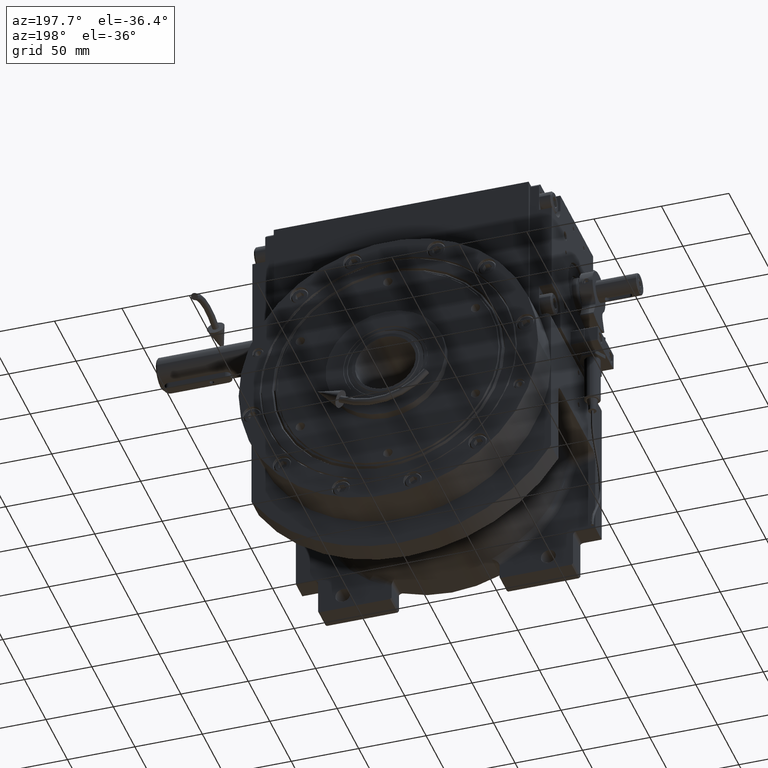
[diagram: clean part render]
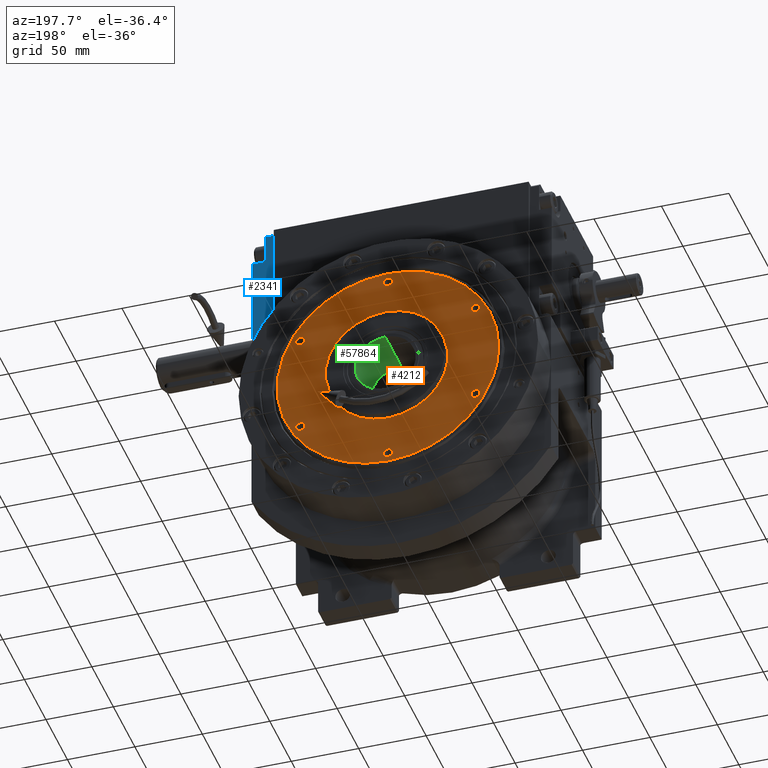
[diagram: same view with three faces highlighted in distinct colors, each labeled with its STEP entity id]
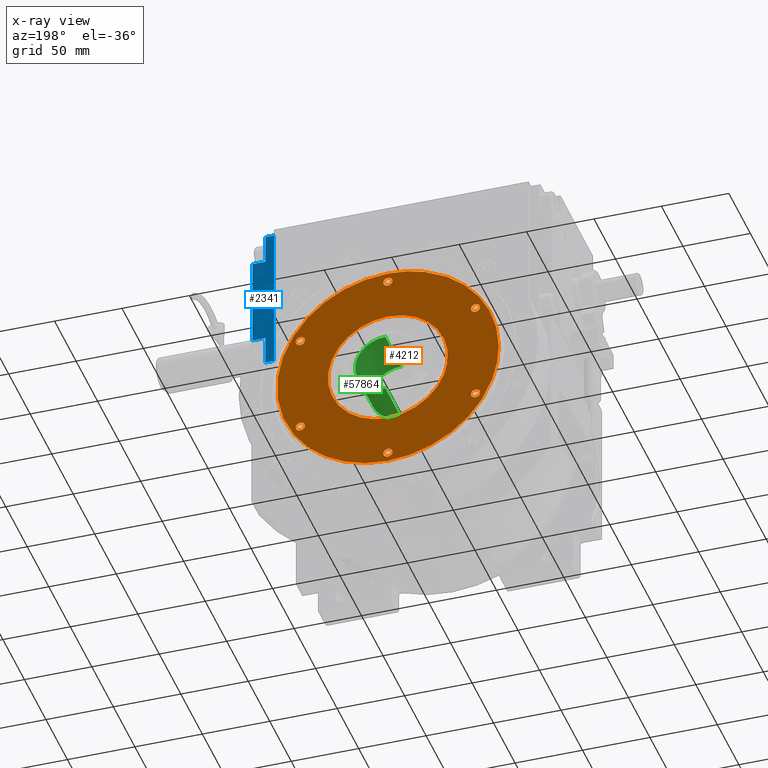
[diagram: x-ray of the same camera — body ghosted, the three highlighted faces saturated]
A machine part, auxiliary view with three faces highlighted in distinct colors.
The next image is the same camera in x-ray (body ghosted, the three faces saturated) — at least one of them is partly hidden behind the body in this view.
Their STEP definitions:

[orange] entity #4212 — the highlighted planar face has unit normal (-0, -1, 0).
#306 = CARTESIAN_POINT ( 'NONE',  ( 65.33763228115985555, 110.5000000000000568, -50.14630245138513942 ) ) ;
#677 = CARTESIAN_POINT ( 'NONE',  ( 80.11857142980534263, 110.4999999999999716, -18.33865731567751567 ) ) ;
#759 = CARTESIAN_POINT ( 'NONE',  ( -80.67297687466574985, 110.5000000000000284, 15.69867770626870396 ) ) ;
#1058 = ORIENTED_EDGE ( 'NONE', *, *, #10526, .T. ) ;
#1128 = CARTESIAN_POINT ( 'NONE',  ( 71.21633143618710449, 110.4999999999998863, 41.11144999242253562 ) ) ;
#1157 = VERTEX_POINT ( 'NONE', #2758 ) ;
#1423 = CARTESIAN_POINT ( 'NONE',  ( 61.93063791654589068, 110.5000000000000568, -54.29769947772616945 ) ) ;
#1491 = CARTESIAN_POINT ( 'NONE',  ( -76.96276536764069931, 110.5000000000000000, 28.95822631422438675 ) ) ;
#1538 = CARTESIAN_POINT ( 'NONE',  ( -21.32673791258709528, 110.5000000000001421, -79.55386997823384831 ) ) ;
#1756 = FACE_BOUND ( 'NONE', #73076, .T. ) ;
#1917 = CARTESIAN_POINT ( 'NONE',  ( -61.93037135062299825, 110.5000000000001421, -54.29808050887285731 ) ) ;
#2118 = DIRECTION ( 'NONE',  ( -5.273559366969623729E-16, 1.000000000000000000, -5.077637656740522622E-16 ) ) ;
#2200 = EDGE_LOOP ( 'NONE', ( #71781, #13057 ) ) ;
#2290 = CARTESIAN_POINT ( 'NONE',  ( -81.41054315470110225, 110.5000000000000853, -11.40073033654683776 ) ) ;
#2423 = CIRCLE ( 'NONE', #60677, 3.400000000000000355 ) ;
#2758 = CARTESIAN_POINT ( 'NONE',  ( -71.59999999999999432, 110.5000000000000000, 2.380580143392494824E-13 ) ) ;
#3621 = CIRCLE ( 'NONE', #46110, 3.400000000000000355 ) ;
#3704 = CARTESIAN_POINT ( 'NONE',  ( 44.45000000000000284, 110.5000000000000000, 1.429029998905364916E-13 ) ) ;
#3837 = CIRCLE ( 'NONE', #17187, 3.400000000000000355 ) ;
#4082 = VERTEX_POINT ( 'NONE', #25676 ) ;
#4212 = ADVANCED_FACE ( 'NONE', ( #42780, #64832, #12788, #42039, #59148, #7102, #1756, #24930 ), #48115, .F. ) ;
#4280 = DIRECTION ( 'NONE',  ( 1.000000000000000000, 0.000000000000000000, 5.962856842276790033E-16 ) ) ;
#4407 = DIRECTION ( 'NONE',  ( -5.273559366969652325E-16, 1.000000000000000000, 3.671899385855942166E-15 ) ) ;
#4794 = VERTEX_POINT ( 'NONE', #22034 ) ;
#5527 = VERTEX_POINT ( 'NONE', #65956 ) ;
#6063 = EDGE_LOOP ( 'NONE', ( #1058, #6740, #6846 ) ) ;
#6094 = CARTESIAN_POINT ( 'NONE',  ( -54.29909472632881062, 110.4999999999999005, 61.92944677904193895 ) ) ;
#6154 = CARTESIAN_POINT ( 'NONE',  ( -44.45000000000000284, 110.5000000000000000, 2.049194677988252161E-13 ) ) ;
#6457 = CARTESIAN_POINT ( 'NONE',  ( -81.41049721478044887, 110.5000000000000426, 11.40046640563029001 ) ) ;
#6740 = ORIENTED_EDGE ( 'NONE', *, *, #62049, .T. ) ;
#6762 = CARTESIAN_POINT ( 'NONE',  ( 36.43741795798398897, 110.5000000000000995, -73.86467248177743272 ) ) ;
#6840 = CARTESIAN_POINT ( 'NONE',  ( -81.98529366466031831, 110.5000000000000568, 6.740478288382870886 ) ) ;
#6846 = ORIENTED_EDGE ( 'NONE', *, *, #43257, .T. ) ;
#7102 = FACE_BOUND ( 'NONE', #49769, .T. ) ;
#7138 = CARTESIAN_POINT ( 'NONE',  ( 5.396965314102865285, 110.5000000000000995, -82.18599046470612279 ) ) ;
#7202 = CARTESIAN_POINT ( 'NONE',  ( -81.03738559922314266, 110.5000000000000426, 13.71894467123681594 ) ) ;
#7259 = CARTESIAN_POINT ( 'NONE',  ( -36.43753282681044681, 110.5000000000001705, -73.86470531561981545 ) ) ;
#7502 = CARTESIAN_POINT ( 'NONE',  ( 76.96232867576262038, 110.4999999999999858, -28.95928036596258082 ) ) ;
#7570 = CARTESIAN_POINT ( 'NONE',  ( 82.18222187922346222, 110.4999999999999432, 5.413844607824422006 ) ) ;
#7615 = CARTESIAN_POINT ( 'NONE',  ( -81.03742544091521438, 110.5000000000000853, -13.71909706410265350 ) ) ;
#8210 = CARTESIAN_POINT ( 'NONE',  ( -37.50000000000000000, 110.4999999999994742, -64.95190528383290030 ) ) ;
#8359 = EDGE_CURVE ( 'NONE', #5527, #22912, #53372, .T. ) ;
#9126 = VERTEX_POINT ( 'NONE', #72231 ) ;
#9660 = CARTESIAN_POINT ( 'NONE',  ( 37.50000000000000000, 110.4999999999994742, -64.95190528383290030 ) ) ;
#10526 = EDGE_CURVE ( 'NONE', #68515, #61570, #59638, .T. ) ;
#11384 = CARTESIAN_POINT ( 'NONE',  ( 71.59999999999999432, 110.5000000000000000, 1.142760808881283269E-13 ) ) ;
#11526 = DIRECTION ( 'NONE',  ( -1.000000000000000000, 0.000000000000000000, 0.000000000000000000 ) ) ;
#11749 = ORIENTED_EDGE ( 'NONE', *, *, #66217, .F. ) ;
#11790 = CARTESIAN_POINT ( 'NONE',  ( -61.92976105365576700, 110.4999999999999858, 54.29857669836291478 ) ) ;
#12163 = CARTESIAN_POINT ( 'NONE',  ( 81.65593245021587165, 110.4999999999999432, 10.75709170780801038 ) ) ;
#12529 = CARTESIAN_POINT ( 'NONE',  ( 80.11850087870723769, 110.4999999999998863, 18.33894396968175045 ) ) ;
#12568 = CIRCLE ( 'NONE', #28299, 3.400000000000000355 ) ;
#12788 = FACE_BOUND ( 'NONE', #51214, .T. ) ;
#12834 = CARTESIAN_POINT ( 'NONE',  ( 80.33387830201934321, 110.5000000000000142, -17.35095847086814302 ) ) ;
#12909 = CARTESIAN_POINT ( 'NONE',  ( 21.32597268393186951, 110.4999999999998721, 79.55402177641899186 ) ) ;
#12959 = CARTESIAN_POINT ( 'NONE',  ( -82.18603400874100373, 110.5000015448012078, -1.581320860106548245E-07 ) ) ;
#13057 = ORIENTED_EDGE ( 'NONE', *, *, #15954, .F. ) ;
#13207 = CARTESIAN_POINT ( 'NONE',  ( -1.048302632909893357E-10, 110.4999999999999858, -82.18603692326387034 ) ) ;
#13274 = CARTESIAN_POINT ( 'NONE',  ( 76.96221393906920127, 110.4999999999999289, 28.95965176232092020 ) ) ;
#13731 = VERTEX_POINT ( 'NONE', #33138 ) ;
#14444 = DIRECTION ( 'NONE',  ( -1.000000000000000000, 0.000000000000000000, 0.000000000000000000 ) ) ;
#15022 = EDGE_CURVE ( 'NONE', #58445, #15712, #68278, .T. ) ;
#15576 = CIRCLE ( 'NONE', #36211, 3.400000000000000355 ) ;
#15712 = VERTEX_POINT ( 'NONE', #11384 ) ;
#15954 = EDGE_CURVE ( 'NONE', #1157, #9126, #2423, .T. ) ;
#16400 = CARTESIAN_POINT ( 'NONE',  ( 34.10000000000000142, 110.4999999999994742, -64.95190528383290030 ) ) ;
#17187 = AXIS2_PLACEMENT_3D ( 'NONE', #66504, #71480, #14444 ) ;
#17777 = CARTESIAN_POINT ( 'NONE',  ( 21.32671897775460579, 110.5000000000000853, -79.55379426815648003 ) ) ;
#17813 = ORIENTED_EDGE ( 'NONE', *, *, #8359, .F. ) ;
#17842 = CARTESIAN_POINT ( 'NONE',  ( -80.08037051196104983, 110.4999999999999858, 18.67829002333724020 ) ) ;
#18212 = CARTESIAN_POINT ( 'NONE',  ( 79.57457908632081001, 110.4999999999999147, 20.63093614355477001 ) ) ;
#18508 = CARTESIAN_POINT ( 'NONE',  ( 41.17286106389223477, 110.5000000000001137, -71.33364164011436515 ) ) ;
#18575 = CARTESIAN_POINT ( 'NONE',  ( 82.18603400874251008, 110.5000015448018047, 1.581324463008391097E-07 ) ) ;
#18620 = ORIENTED_EDGE ( 'NONE', *, *, #66054, .F. ) ;
#18961 = CARTESIAN_POINT ( 'NONE',  ( 69.83408181518966273, 110.4999999999998721, 43.41695845024580791 ) ) ;
#19012 = CARTESIAN_POINT ( 'NONE',  ( -80.67302273752038388, 110.5000000000000853, -15.69862675829485354 ) ) ;
#19204 = CIRCLE ( 'NONE', #28949, 3.400000000000000355 ) ;
#19221 = CARTESIAN_POINT ( 'NONE',  ( -3.796580531812242820E-14, 110.5000000000000000, 1.748184930150495917E-13 ) ) ;
#19382 = CARTESIAN_POINT ( 'NONE',  ( -65.33708734634382154, 110.5000000000001279, -50.14696052069761123 ) ) ;
#19507 = CARTESIAN_POINT ( 'NONE',  ( 40.89999999999973568, 110.5000000000005258, 64.95190528383290030 ) ) ;
#20192 = VERTEX_POINT ( 'NONE', #16400 ) ;
#20335 = CARTESIAN_POINT ( 'NONE',  ( -75.00000000000000000, 110.5000000000000000, 2.458476131006590826E-13 ) ) ;
#20880 = CARTESIAN_POINT ( 'NONE',  ( -37.50000000000000000, 110.4999999999994742, -64.95190528383290030 ) ) ;
#21477 = DIRECTION ( 'NONE',  ( 3.652307214833027421E-15, 1.000000000000000000, 3.671899385855938222E-15 ) ) ;
#22034 = CARTESIAN_POINT ( 'NONE',  ( 34.09999999999973141, 110.5000000000005258, 64.95190528383290030 ) ) ;
#22315 = CARTESIAN_POINT ( 'NONE',  ( -2.985112157460509733E-14, 110.5000000000000000, 1.677130656574485646E-13 ) ) ;
#22316 = VERTEX_POINT ( 'NONE', #3704 ) ;
#22588 = AXIS2_PLACEMENT_3D ( 'NONE', #31004, #2118, #65197 ) ;
#22845 = EDGE_CURVE ( 'NONE', #4082, #13731, #27134, .T. ) ;
#22912 = VERTEX_POINT ( 'NONE', #38585 ) ;
#23363 = AXIS2_PLACEMENT_3D ( 'NONE', #44939, #39631, #4280 ) ;
#23472 = CARTESIAN_POINT ( 'NONE',  ( 73.74813151264126532, 110.5000000000000142, -36.37479690083394246 ) ) ;
#23549 = CARTESIAN_POINT ( 'NONE',  ( 26.46597584794663760, 110.4999999999998437, 77.99473097346026407 ) ) ;
#23858 = CARTESIAN_POINT ( 'NONE',  ( 71.21656534630048441, 110.5000000000000142, -41.11101387479450153 ) ) ;
#23925 = CARTESIAN_POINT ( 'NONE',  ( 54.29876972623152653, 110.4999999999998579, 61.92967476324753306 ) ) ;
#24296 = CARTESIAN_POINT ( 'NONE',  ( 80.54161329299181205, 110.4999999999999147, 16.35928189945989075 ) ) ;
#24664 = CARTESIAN_POINT ( 'NONE',  ( -21.32594694526335743, 110.4999999999998863, 79.55394827524169443 ) ) ;
#24711 = CARTESIAN_POINT ( 'NONE',  ( -10.74076764840351927, 110.5000000000001137, -81.65964476131436811 ) ) ;
#24930 = FACE_BOUND ( 'NONE', #37902, .T. ) ;
#24931 = ORIENTED_EDGE ( 'NONE', *, *, #15022, .F. ) ;
#25072 = ORIENTED_EDGE ( 'NONE', *, *, #69507, .F. ) ;
#25676 = CARTESIAN_POINT ( 'NONE',  ( -40.89999999999999858, 110.4999999999994742, -64.95190528383290030 ) ) ;
#26364 = DIRECTION ( 'NONE',  ( -5.273559366969644437E-16, 1.000000000000000000, 1.582067810090946875E-15 ) ) ;
#27134 = CIRCLE ( 'NONE', #46584, 3.400000000000000355 ) ;
#27414 = ORIENTED_EDGE ( 'NONE', *, *, #57315, .F. ) ;
#27511 = VERTEX_POINT ( 'NONE', #6154 ) ;
#27552 = DIRECTION ( 'NONE',  ( -7.110468897703216240E-16, -1.000000000000000000, -1.582067810090945692E-15 ) ) ;
#27580 = CARTESIAN_POINT ( 'NONE',  ( 37.49999999999973710, 110.5000000000005258, 64.95190528383290030 ) ) ;
#28000 = AXIS2_PLACEMENT_3D ( 'NONE', #49202, #60238, #67049 ) ;
#28299 = AXIS2_PLACEMENT_3D ( 'NONE', #27580, #4407, #49254 ) ;
#28792 = DIRECTION ( 'NONE',  ( 2.076516686384254139E-16, -1.000000000000000000, -1.606026332851818412E-15 ) ) ;
#28949 = AXIS2_PLACEMENT_3D ( 'NONE', #9660, #33575, #67020 ) ;
#29275 = CARTESIAN_POINT ( 'NONE',  ( -50.14684274527401442, 110.4999999999999147, 65.33704237330360343 ) ) ;
#29363 = AXIS2_PLACEMENT_3D ( 'NONE', #20880, #39136, #44058 ) ;
#29633 = CARTESIAN_POINT ( 'NONE',  ( -73.86467355760835574, 110.4999999999999574, 36.43724814399707412 ) ) ;
#30012 = CARTESIAN_POINT ( 'NONE',  ( -36.43677092628833236, 110.4999999999999005, 73.86494086435318707 ) ) ;
#30316 = CARTESIAN_POINT ( 'NONE',  ( 75.00000000000000000, 110.5000000000000000, 1.168900046200205579E-13 ) ) ;
#30383 = CARTESIAN_POINT ( 'NONE',  ( -80.73618378714651556, 110.5000000000000142, 15.37033942092499217 ) ) ;
#30436 = CARTESIAN_POINT ( 'NONE',  ( -80.08026981023142810, 110.5000000000000995, -18.67866566709005838 ) ) ;
#31004 = CARTESIAN_POINT ( 'NONE',  ( -37.50000000000026290, 110.5000000000005258, 64.95190528383290030 ) ) ;
#32881 = DIRECTION ( 'NONE',  ( -1.000000000000000000, 7.110468897703203421E-16, 8.404735241107630372E-16 ) ) ;
#33138 = CARTESIAN_POINT ( 'NONE',  ( -34.10000000000000142, 110.4999999999994742, -64.95190528383290030 ) ) ;
#33282 = CIRCLE ( 'NONE', #41801, 44.45000000000000284 ) ;
#33573 = CARTESIAN_POINT ( 'NONE',  ( -82.18603400874100373, 110.5000015448012078, -1.581320860106548245E-07 ) ) ;
#33575 = DIRECTION ( 'NONE',  ( 3.652307214833036888E-15, 1.000000000000000000, 3.671899385855933489E-15 ) ) ;
#33770 = CARTESIAN_POINT ( 'NONE',  ( 82.18603400874251008, 110.5000015448018047, 1.581324463008391097E-07 ) ) ;
#35758 = CARTESIAN_POINT ( 'NONE',  ( -73.86436510405077627, 110.5000000000001421, -36.43783581387047832 ) ) ;
#35995 = CIRCLE ( 'NONE', #22588, 3.400000000000000355 ) ;
#36089 = CARTESIAN_POINT ( 'NONE',  ( -80.85911346599482385, 110.5000000000000568, 14.71011054370736026 ) ) ;
#36138 = CARTESIAN_POINT ( 'NONE',  ( -50.14754556814374098, 110.5000000000001279, -65.33666926840503208 ) ) ;
#36211 = AXIS2_PLACEMENT_3D ( 'NONE', #69300, #46857, #11526 ) ;
#36384 = CARTESIAN_POINT ( 'NONE',  ( 80.54158547785662847, 110.4999999999999716, -16.35931090249719233 ) ) ;
#36449 = CARTESIAN_POINT ( 'NONE',  ( 80.33384769217839505, 110.4999999999999432, 17.35112966435332282 ) ) ;
#37080 = VERTEX_POINT ( 'NONE', #19507 ) ;
#37249 = CARTESIAN_POINT ( 'NONE',  ( -1.048302632909893357E-10, 110.4999999999999858, -82.18603692326387034 ) ) ;
#37828 = CARTESIAN_POINT ( 'NONE',  ( -37.50000000000026290, 110.5000000000005258, 64.95190528383290030 ) ) ;
#37902 = EDGE_LOOP ( 'NONE', ( #40545, #73168 ) ) ;
#38585 = CARTESIAN_POINT ( 'NONE',  ( -34.10000000000026432, 110.5000000000005258, 64.95190528383290030 ) ) ;
#39136 = DIRECTION ( 'NONE',  ( -5.273559366969623729E-16, 1.000000000000000000, -5.077637656740325407E-16 ) ) ;
#39342 = CARTESIAN_POINT ( 'NONE',  ( 78.39999999999999147, 110.5000000000000000, 1.089253687247680112E-13 ) ) ;
#39631 = DIRECTION ( 'NONE',  ( -5.273559366969644437E-16, 1.000000000000000000, 1.582067810090946875E-15 ) ) ;
#39848 = EDGE_CURVE ( 'NONE', #9126, #1157, #3621, .T. ) ;
#40545 = ORIENTED_EDGE ( 'NONE', *, *, #65283, .F. ) ;
#40666 = CARTESIAN_POINT ( 'NONE',  ( -82.18603400874100373, 110.5000015448012078, -1.581320860106548245E-07 ) ) ;
#40974 = CARTESIAN_POINT ( 'NONE',  ( 69.83423930135019475, 110.5000000000000142, -43.41667302301327425 ) ) ;
#41046 = CARTESIAN_POINT ( 'NONE',  ( -77.86821339563778110, 110.5000000000000142, 26.42818210147190072 ) ) ;
#41337 = CARTESIAN_POINT ( 'NONE',  ( 74.89780891093307957, 110.5000000000000284, -33.94318345663821646 ) ) ;
#41455 = CARTESIAN_POINT ( 'NONE',  ( -77.86803878220750619, 110.5000000000001137, -26.42874468702207480 ) ) ;
#41772 = CARTESIAN_POINT ( 'NONE',  ( 5.396190313849515974, 110.4999999999998721, 82.18606838660643632 ) ) ;
#41801 = AXIS2_PLACEMENT_3D ( 'NONE', #22315, #28792, #45506 ) ;
#41829 = CARTESIAN_POINT ( 'NONE',  ( -81.98533930688324745, 110.5000000000000568, -6.740832071539154313 ) ) ;
#42039 = FACE_BOUND ( 'NONE', #2200, .T. ) ;
#42157 = CARTESIAN_POINT ( 'NONE',  ( 73.74790136345734481, 110.4999999999998437, 36.37523474268285639 ) ) ;
#42573 = CARTESIAN_POINT ( 'NONE',  ( -82.18412582237166930, 110.5000000000000995, -2.706922455996552124 ) ) ;
#42780 = FACE_OUTER_BOUND ( 'NONE', #6063, .T. ) ;
#42826 = DIRECTION ( 'NONE',  ( -5.273559366969644437E-16, 1.000000000000000000, 1.582067810090946875E-15 ) ) ;
#42936 = CARTESIAN_POINT ( 'NONE',  ( -26.46516568415016124, 110.5000000000001563, -77.99506614383155068 ) ) ;
#42944 = B_SPLINE_CURVE_WITH_KNOTS ( 'NONE', 3,
 ( #33770, #70607, #65249, #36384, #64877, #12834, #677, #46659, #58812, #7502, #41337, #23472, #23858, #40974, #306, #1423, #64506, #69854, #18508, #6762, #53857, #17777, #47041, #7138, #13207 ),
 .UNSPECIFIED., .F., .F.,
 ( 4, 2, 2, 1, 1, 1, 2, 2, 2, 2, 2, 2, 2, 4 ),
 ( 0.000000000000000000, 0.06249999648971073934, 0.06640624627031764537, 0.07031249605092454447, 0.07812499561213832877, 0.09374999473456591126, 0.1249999929794211317, 0.1562499912242763522, 0.1874999894691315450, 0.2499999859588421525, 0.3124999824485527600, 0.3749999789382633120, 0.4374999754279739750, 0.4999999719176845825 ),
 .UNSPECIFIED. ) ;
#43157 = DIRECTION ( 'NONE',  ( 3.652307214833036888E-15, 1.000000000000000000, 3.671899385855924023E-15 ) ) ;
#43257 = EDGE_CURVE ( 'NONE', #57976, #68515, #49737, .T. ) ;
#43838 = CARTESIAN_POINT ( 'NONE',  ( 82.18603400874251008, 110.5000015448018047, 1.581324463008391097E-07 ) ) ;
#44058 = DIRECTION ( 'NONE',  ( 1.000000000000000000, 0.000000000000000000, 0.000000000000000000 ) ) ;
#44655 = DIRECTION ( 'NONE',  ( -1.000000000000000000, 4.081702296416015997E-15, 0.000000000000000000 ) ) ;
#44939 = CARTESIAN_POINT ( 'NONE',  ( 75.00000000000000000, 110.5000000000000000, 1.068979973983941616E-13 ) ) ;
#45506 = DIRECTION ( 'NONE',  ( 1.000000000000000000, -9.366335978277473892E-16, -5.581567101667585714E-16 ) ) ;
#45561 = AXIS2_PLACEMENT_3D ( 'NONE', #19221, #27552, #32881 ) ;
#46110 = AXIS2_PLACEMENT_3D ( 'NONE', #56003, #26364, #49916 ) ;
#46457 = EDGE_CURVE ( 'NONE', #22316, #27511, #33282, .T. ) ;
#46584 = AXIS2_PLACEMENT_3D ( 'NONE', #8210, #43157, #66333 ) ;
#46659 = CARTESIAN_POINT ( 'NONE',  ( 79.57472203535752442, 110.4999999999999432, -20.63044246711246643 ) ) ;
#46736 = CARTESIAN_POINT ( 'NONE',  ( -79.42723460417916215, 110.5000000000000000, 21.28768615169964917 ) ) ;
#46857 = DIRECTION ( 'NONE',  ( -5.273559366969623729E-16, 1.000000000000000000, -5.077637656740424015E-16 ) ) ;
#47041 = CARTESIAN_POINT ( 'NONE',  ( 10.74078281828398218, 110.5000000000001137, -81.65971843768936367 ) ) ;
#47110 = CARTESIAN_POINT ( 'NONE',  ( 41.17346744512529710, 110.4999999999998579, 71.33314274904860497 ) ) ;
#47166 = CARTESIAN_POINT ( 'NONE',  ( -80.85914935550094640, 110.5000000000001137, -14.71020086056633147 ) ) ;
#47531 = CARTESIAN_POINT ( 'NONE',  ( -5.396965920549730455, 110.5000000000001137, -82.18606886526305288 ) ) ;
#47777 = DIRECTION ( 'NONE',  ( -1.000000000000000000, 0.000000000000000000, -6.615929209703244874E-16 ) ) ;
#47846 = CARTESIAN_POINT ( 'NONE',  ( -5.396175763947922199, 110.4999999999998721, 82.18599094346414802 ) ) ;
#48115 = PLANE ( 'NONE',  #45561 ) ;
#48650 = CIRCLE ( 'NONE', #28000, 44.45000000000000284 ) ;
#49202 = CARTESIAN_POINT ( 'NONE',  ( -4.050926261100700401E-14, 110.5000000000000000, 1.712657793362490655E-13 ) ) ;
#49254 = DIRECTION ( 'NONE',  ( 1.000000000000000000, 0.000000000000000000, 0.000000000000000000 ) ) ;
#49737 = B_SPLINE_CURVE_WITH_KNOTS ( 'NONE', 3,
 ( #37249, #47531, #24711, #1538, #42936, #7259, #65375, #36138, #71835, #1917, #19382, #66109, #35758, #60426, #41455, #64632, #30436, #19012, #53239, #47166, #7615, #2290, #41829, #42573, #12959 ),
 .UNSPECIFIED., .F., .F.,
 ( 4, 2, 2, 2, 2, 2, 2, 2, 2, 2, 1, 1, 1, 4 ),
 ( 0.4999999719176845825, 0.5624999754279740305, 0.6249999789382635340, 0.6874999824485529265, 0.7499999859588424300, 0.8124999894691320446, 0.8749999929794214371, 0.9062499947345662443, 0.9374999964897110516, 0.9414062467091039998, 0.9453124969284971701, 0.9531249973672832887, 0.9687499982448555258, 1.000000000000000000 ),
 .UNSPECIFIED. ) ;
#49769 = EDGE_LOOP ( 'NONE', ( #75119, #67638 ) ) ;
#49916 = DIRECTION ( 'NONE',  ( -1.000000000000000000, 0.000000000000000000, -2.228966602794090332E-15 ) ) ;
#51214 = EDGE_LOOP ( 'NONE', ( #59970, #11749 ) ) ;
#52134 = CARTESIAN_POINT ( 'NONE',  ( -1.048302632909893357E-10, 110.4999999999999858, -82.18603692326387034 ) ) ;
#52181 = EDGE_CURVE ( 'NONE', #37080, #4794, #12568, .T. ) ;
#52426 = CARTESIAN_POINT ( 'NONE',  ( 78.32095192439936682, 110.4999999999999005, 25.16328900372736399 ) ) ;
#53179 = CARTESIAN_POINT ( 'NONE',  ( 36.43673274471090906, 110.4999999999998153, 73.86503631034800321 ) ) ;
#53239 = CARTESIAN_POINT ( 'NONE',  ( -80.73621674438213347, 110.5000000000000995, -15.37038518178266422 ) ) ;
#53372 = CIRCLE ( 'NONE', #72733, 3.400000000000000355 ) ;
#53555 = CARTESIAN_POINT ( 'NONE',  ( 61.93011393209873461, 110.4999999999998721, 54.29833759267270921 ) ) ;
#53857 = CARTESIAN_POINT ( 'NONE',  ( 26.46527515611211712, 110.5000000000000711, -77.99510436064846886 ) ) ;
#53927 = CARTESIAN_POINT ( 'NONE',  ( -10.74154236511540184, 110.4999999999999289, 81.65956691445208548 ) ) ;
#54405 = ORIENTED_EDGE ( 'NONE', *, *, #61521, .F. ) ;
#54640 = VERTEX_POINT ( 'NONE', #56702 ) ;
#55037 = CIRCLE ( 'NONE', #68389, 3.400000000000000355 ) ;
#56003 = CARTESIAN_POINT ( 'NONE',  ( -75.00000000000000000, 110.5000000000000000, 2.482901037548344774E-13 ) ) ;
#56702 = CARTESIAN_POINT ( 'NONE',  ( 40.89999999999999858, 110.4999999999994742, -64.95190528383290030 ) ) ;
#57315 = EDGE_CURVE ( 'NONE', #22912, #5527, #35995, .T. ) ;
#57976 = VERTEX_POINT ( 'NONE', #52134 ) ;
#58152 = CARTESIAN_POINT ( 'NONE',  ( -82.18410185386893829, 110.5000000000000711, 2.706720040397581517 ) ) ;
#58445 = VERTEX_POINT ( 'NONE', #39342 ) ;
#58812 = CARTESIAN_POINT ( 'NONE',  ( 78.32115647600105035, 110.4999999999999716, -25.16263082416804409 ) ) ;
#59148 = FACE_BOUND ( 'NONE', #71020, .T. ) ;
#59257 = CARTESIAN_POINT ( 'NONE',  ( 50.14712887847358758, 110.4999999999998295, 65.33694734459885467 ) ) ;
#59624 = CARTESIAN_POINT ( 'NONE',  ( 80.47346500646511913, 110.4999999999999289, 16.69135747300166628 ) ) ;
#59638 = B_SPLINE_CURVE_WITH_KNOTS ( 'NONE', 3,
 ( #40666, #58152, #6840, #6457, #7202, #36089, #30383, #759, #17842, #46736, #41046, #1491, #29633, #70672, #63835, #11790, #6094, #29275, #64211, #30012, #65323, #24664, #53927, #47846, #41772, #64946, #12909, #23549, #53179, #47110, #59257, #23925, #53555, #71043, #18961, #1128, #42157, #70312, #13274, #52426, #18212, #12529, #36449, #59624, #24296, #12163, #7570, #18575 ),
 .UNSPECIFIED., .F., .F.,
 ( 4, 1, 1, 1, 2, 2, 2, 2, 2, 2, 2, 2, 2, 2, 2, 2, 2, 2, 2, 2, 2, 1, 1, 1, 2, 2, 4 ),
 ( 0.000000000000000000, 0.03125000000000001388, 0.04687500000000003469, 0.05468750000000004857, 0.05859375000000006939, 0.06250000000000008327, 0.09375000000000011102, 0.1250000000000001388, 0.1875000000000001943, 0.2500000000000002220, 0.3125000000000002776, 0.3750000000000002776, 0.4375000000000003331, 0.5000000000000003331, 0.5625000000000004441, 0.6250000000000005551, 0.6875000000000005551, 0.7500000000000005551, 0.8125000000000005551, 0.8437500000000005551, 0.8750000000000006661, 0.9062500000000006661, 0.9218750000000006661, 0.9296875000000006661, 0.9335937500000006661, 0.9375000000000006661, 1.000000000000000000 ),
 .UNSPECIFIED. ) ;
#59970 = ORIENTED_EDGE ( 'NONE', *, *, #22845, .F. ) ;
#60238 = DIRECTION ( 'NONE',  ( 1.120525994201121368E-16, 1.000000000000000000, 1.558109287330073168E-15 ) ) ;
#60426 = CARTESIAN_POINT ( 'NONE',  ( -76.96293238175641704, 110.5000000000001279, -28.95791760141058546 ) ) ;
#60677 = AXIS2_PLACEMENT_3D ( 'NONE', #20335, #61368, #73902 ) ;
#61368 = DIRECTION ( 'NONE',  ( -5.273559366969644437E-16, 1.000000000000000000, 1.582067810090946875E-15 ) ) ;
#61521 = EDGE_CURVE ( 'NONE', #54640, #20192, #19204, .T. ) ;
#61570 = VERTEX_POINT ( 'NONE', #43838 ) ;
#61711 = EDGE_CURVE ( 'NONE', #4794, #37080, #15576, .T. ) ;
#62049 = EDGE_CURVE ( 'NONE', #61570, #57976, #42944, .T. ) ;
#62764 = EDGE_LOOP ( 'NONE', ( #18620, #54405 ) ) ;
#63835 = CARTESIAN_POINT ( 'NONE',  ( -65.33761603904910942, 110.4999999999999858, 50.14632643991285477 ) ) ;
#64211 = CARTESIAN_POINT ( 'NONE',  ( -41.17372798125236244, 110.4999999999999147, 71.33306199257280866 ) ) ;
#64506 = CARTESIAN_POINT ( 'NONE',  ( 54.29822300750017661, 110.5000000000000995, -61.93031885547883775 ) ) ;
#64632 = CARTESIAN_POINT ( 'NONE',  ( -79.42706700825722521, 110.5000000000001421, -21.28825086087030627 ) ) ;
#64832 = FACE_BOUND ( 'NONE', #62764, .T. ) ;
#64877 = CARTESIAN_POINT ( 'NONE',  ( 80.47346700800815711, 110.4999999999999858, -16.69126919466631520 ) ) ;
#64946 = CARTESIAN_POINT ( 'NONE',  ( 10.74154536275718641, 110.4999999999998579, 81.65949047945834138 ) ) ;
#65197 = DIRECTION ( 'NONE',  ( 1.000000000000000000, 0.000000000000000000, 0.000000000000000000 ) ) ;
#65249 = CARTESIAN_POINT ( 'NONE',  ( 81.65587465362946773, 110.5000000000000000, -10.75668806138973110 ) ) ;
#65283 = EDGE_CURVE ( 'NONE', #22316, #27511, #48650, .T. ) ;
#65323 = CARTESIAN_POINT ( 'NONE',  ( -26.46591210633612334, 110.4999999999998863, 77.99484015378862978 ) ) ;
#65375 = CARTESIAN_POINT ( 'NONE',  ( -41.17304319471158180, 110.5000000000001563, -71.33342587732599327 ) ) ;
#65724 = CIRCLE ( 'NONE', #29363, 3.400000000000000355 ) ;
#65956 = CARTESIAN_POINT ( 'NONE',  ( -40.90000000000026148, 110.5000000000005258, 64.95190528383290030 ) ) ;
#66054 = EDGE_CURVE ( 'NONE', #20192, #54640, #3837, .T. ) ;
#66109 = CARTESIAN_POINT ( 'NONE',  ( -71.33364469616634551, 110.5000000000001421, -41.17277949763061429 ) ) ;
#66217 = EDGE_CURVE ( 'NONE', #13731, #4082, #65724, .T. ) ;
#66333 = DIRECTION ( 'NONE',  ( -1.000000000000000000, 4.081702296416015997E-15, 0.000000000000000000 ) ) ;
#66504 = CARTESIAN_POINT ( 'NONE',  ( 37.50000000000000000, 110.4999999999994742, -64.95190528383290030 ) ) ;
#67020 = DIRECTION ( 'NONE',  ( 1.000000000000000000, -4.081702296416015997E-15, 0.000000000000000000 ) ) ;
#67049 = DIRECTION ( 'NONE',  ( 1.000000000000000000, -1.248844797103662988E-15, -6.380827771813924907E-16 ) ) ;
#67638 = ORIENTED_EDGE ( 'NONE', *, *, #52181, .F. ) ;
#68278 = CIRCLE ( 'NONE', #23363, 3.400000000000000355 ) ;
#68389 = AXIS2_PLACEMENT_3D ( 'NONE', #30316, #42826, #47777 ) ;
#68515 = VERTEX_POINT ( 'NONE', #33573 ) ;
#69300 = CARTESIAN_POINT ( 'NONE',  ( 37.49999999999973710, 110.5000000000005258, 64.95190528383290030 ) ) ;
#69507 = EDGE_CURVE ( 'NONE', #15712, #58445, #55037, .T. ) ;
#69854 = CARTESIAN_POINT ( 'NONE',  ( 50.14771722367685669, 110.5000000000000995, -65.33645767331695708 ) ) ;
#70312 = CARTESIAN_POINT ( 'NONE',  ( 74.89794069821213895, 110.4999999999998437, 33.94279222128619011 ) ) ;
#70607 = CARTESIAN_POINT ( 'NONE',  ( 82.18217394222035921, 110.4999999999999858, -5.413439777049596557 ) ) ;
#70672 = CARTESIAN_POINT ( 'NONE',  ( -71.33312151958747904, 110.4999999999999716, 41.17344376063498856 ) ) ;
#71020 = EDGE_LOOP ( 'NONE', ( #17813, #27414 ) ) ;
#71043 = CARTESIAN_POINT ( 'NONE',  ( 65.33793898011036561, 110.4999999999998721, 50.14568632257596903 ) ) ;
#71480 = DIRECTION ( 'NONE',  ( -5.273559366969623729E-16, 1.000000000000000000, -5.077637656740475291E-16 ) ) ;
#71781 = ORIENTED_EDGE ( 'NONE', *, *, #39848, .F. ) ;
#71835 = CARTESIAN_POINT ( 'NONE',  ( -54.29850716401770683, 110.5000000000001421, -61.92993699073136327 ) ) ;
#72231 = CARTESIAN_POINT ( 'NONE',  ( -78.39999999999999147, 110.5000000000000000, 2.434087265026099747E-13 ) ) ;
#72733 = AXIS2_PLACEMENT_3D ( 'NONE', #37828, #21477, #44655 ) ;
#73076 = EDGE_LOOP ( 'NONE', ( #25072, #24931 ) ) ;
#73168 = ORIENTED_EDGE ( 'NONE', *, *, #46457, .T. ) ;
#73902 = DIRECTION ( 'NONE',  ( 1.000000000000000000, 0.000000000000000000, -3.191534046846391344E-15 ) ) ;
#75119 = ORIENTED_EDGE ( 'NONE', *, *, #61711, .F. ) ;

[blue] entity #2341 — the highlighted planar face has unit normal (0, 1, -0).
#134 = DIRECTION ( 'NONE',  ( 2.320366121466574645E-14, -1.000000000000000000, 2.109423746787981626E-15 ) ) ;
#2341 = ADVANCED_FACE ( 'NONE', ( #34375 ), #28308, .T. ) ;
#2417 = EDGE_CURVE ( 'NONE', #9741, #38517, #13091, .T. ) ;
#6354 = CARTESIAN_POINT ( 'NONE',  ( 62.50000000000000000, -16.00000000000105516, -33.49999999999894840 ) ) ;
#6645 = EDGE_CURVE ( 'NONE', #63256, #10891, #43728, .T. ) ;
#8612 = CARTESIAN_POINT ( 'NONE',  ( 62.49999999999953104, -1.054711873393898713E-12, -54.99999999999947420 ) ) ;
#9741 = VERTEX_POINT ( 'NONE', #6354 ) ;
#10035 = VECTOR ( 'NONE', #134, 1000.000000000000000 ) ;
#10298 = DIRECTION ( 'NONE',  ( -8.437694987151227573E-15, 2.109423746787980837E-15, -1.000000000000000000 ) ) ;
#10476 = DIRECTION ( 'NONE',  ( -8.437694987151227573E-15, 2.109423746787980837E-15, -1.000000000000000000 ) ) ;
#10891 = VERTEX_POINT ( 'NONE', #8612 ) ;
#11274 = ORIENTED_EDGE ( 'NONE', *, *, #56638, .T. ) ;
#12225 = EDGE_CURVE ( 'NONE', #38517, #33975, #38367, .T. ) ;
#13091 = LINE ( 'NONE', #52987, #16220 ) ;
#13933 = EDGE_CURVE ( 'NONE', #19174, #63641, #43978, .T. ) ;
#14855 = DIRECTION ( 'NONE',  ( 2.320366121466574645E-14, -1.000000000000000000, 2.109423746787981626E-15 ) ) ;
#16220 = VECTOR ( 'NONE', #59071, 1000.000000000000000 ) ;
#19174 = VERTEX_POINT ( 'NONE', #42344 ) ;
#19928 = CARTESIAN_POINT ( 'NONE',  ( 62.50000000000052580, -1.582067810090848070E-12, 55.00000000000000711 ) ) ;
#21492 = EDGE_CURVE ( 'NONE', #71724, #63641, #33895, .T. ) ;
#21852 = DIRECTION ( 'NONE',  ( 1.000000000000000000, -2.320366121466569596E-14, -8.437694987151276482E-15 ) ) ;
#22147 = ORIENTED_EDGE ( 'NONE', *, *, #21492, .T. ) ;
#22767 = CARTESIAN_POINT ( 'NONE',  ( 62.50000000000093081, -16.00000000000158096, 33.50000000000001421 ) ) ;
#22988 = CARTESIAN_POINT ( 'NONE',  ( 62.50000000000020606, -1.582067810090848070E-12, 58.00000000000000711 ) ) ;
#27158 = CARTESIAN_POINT ( 'NONE',  ( 62.50000000000052580, -6.500000000001573852, 55.00000000000000711 ) ) ;
#27369 = ORIENTED_EDGE ( 'NONE', *, *, #12225, .T. ) ;
#28308 = PLANE ( 'NONE',  #45342 ) ;
#28437 = VECTOR ( 'NONE', #31179, 1000.000000000000000 ) ;
#29699 = DIRECTION ( 'NONE',  ( -8.437694987151227573E-15, 2.109423746787980837E-15, -1.000000000000000000 ) ) ;
#31179 = DIRECTION ( 'NONE',  ( -8.437694987151227573E-15, 2.109423746787980837E-15, -1.000000000000000000 ) ) ;
#32245 = CARTESIAN_POINT ( 'NONE',  ( 62.49999999999976552, -6.500000000001060485, -54.99999999999947420 ) ) ;
#32340 = CARTESIAN_POINT ( 'NONE',  ( 62.50000000000052580, -1.582067810090848070E-12, 55.00000000000000711 ) ) ;
#33895 = LINE ( 'NONE', #62768, #60136 ) ;
#33975 = VERTEX_POINT ( 'NONE', #32245 ) ;
#34375 = FACE_OUTER_BOUND ( 'NONE', #45439, .T. ) ;
#35769 = ORIENTED_EDGE ( 'NONE', *, *, #60154, .T. ) ;
#37911 = CARTESIAN_POINT ( 'NONE',  ( 62.50000000000093081, -16.00000000000158096, 33.50000000000001421 ) ) ;
#38260 = CARTESIAN_POINT ( 'NONE',  ( 62.50000000000052580, -6.500000000001573852, 33.50000000000001421 ) ) ;
#38367 = LINE ( 'NONE', #61538, #28437 ) ;
#38517 = VERTEX_POINT ( 'NONE', #55709 ) ;
#39512 = LINE ( 'NONE', #22767, #54115 ) ;
#40968 = ORIENTED_EDGE ( 'NONE', *, *, #68757, .F. ) ;
#42344 = CARTESIAN_POINT ( 'NONE',  ( 62.50000000000093081, -16.00000000000158096, 33.50000000000001421 ) ) ;
#43728 = LINE ( 'NONE', #32340, #56795 ) ;
#43978 = LINE ( 'NONE', #37911, #64427 ) ;
#45342 = AXIS2_PLACEMENT_3D ( 'NONE', #22988, #21852, #10476 ) ;
#45439 = EDGE_LOOP ( 'NONE', ( #22147, #51091, #11274, #73754, #27369, #40968, #51720, #35769 ) ) ;
#45725 = LINE ( 'NONE', #68920, #10035 ) ;
#45953 = DIRECTION ( 'NONE',  ( -8.437694987151227573E-15, 2.109423746787980837E-15, -1.000000000000000000 ) ) ;
#48357 = VECTOR ( 'NONE', #14855, 1000.000000000000000 ) ;
#51091 = ORIENTED_EDGE ( 'NONE', *, *, #13933, .F. ) ;
#51720 = ORIENTED_EDGE ( 'NONE', *, *, #6645, .F. ) ;
#52987 = CARTESIAN_POINT ( 'NONE',  ( 62.50000000000000000, -16.00000000000105516, -33.49999999999894840 ) ) ;
#54115 = VECTOR ( 'NONE', #45953, 1000.000000000000000 ) ;
#55015 = DIRECTION ( 'NONE',  ( -2.320366121466574645E-14, 1.000000000000000000, -2.109423746787981626E-15 ) ) ;
#55709 = CARTESIAN_POINT ( 'NONE',  ( 62.49999999999987210, -6.500000000001060485, -33.49999999999894840 ) ) ;
#56638 = EDGE_CURVE ( 'NONE', #19174, #9741, #39512, .T. ) ;
#56795 = VECTOR ( 'NONE', #10298, 1000.000000000000000 ) ;
#59071 = DIRECTION ( 'NONE',  ( -2.320366121466574645E-14, 1.000000000000000000, -2.109423746787981626E-15 ) ) ;
#60136 = VECTOR ( 'NONE', #29699, 1000.000000000000000 ) ;
#60154 = EDGE_CURVE ( 'NONE', #63256, #71724, #61971, .T. ) ;
#61538 = CARTESIAN_POINT ( 'NONE',  ( 62.49999999999987210, -6.500000000001060485, -33.49999999999894840 ) ) ;
#61971 = LINE ( 'NONE', #67674, #48357 ) ;
#62768 = CARTESIAN_POINT ( 'NONE',  ( 62.50000000000052580, -6.500000000001573852, 55.00000000000000711 ) ) ;
#63256 = VERTEX_POINT ( 'NONE', #19928 ) ;
#63641 = VERTEX_POINT ( 'NONE', #38260 ) ;
#64427 = VECTOR ( 'NONE', #55015, 1000.000000000000000 ) ;
#67674 = CARTESIAN_POINT ( 'NONE',  ( 62.50000000000052580, -1.582067810090848070E-12, 55.00000000000000711 ) ) ;
#68757 = EDGE_CURVE ( 'NONE', #10891, #33975, #45725, .T. ) ;
#68920 = CARTESIAN_POINT ( 'NONE',  ( 62.49999999999953104, -1.054711873393898713E-12, -54.99999999999947420 ) ) ;
#71724 = VERTEX_POINT ( 'NONE', #27158 ) ;
#73754 = ORIENTED_EDGE ( 'NONE', *, *, #2417, .T. ) ;

[green] entity #57864 — the highlighted cylindrical surface (edge-blend (fillet) strip) has radius 22.5 mm, axis along (0, -1, 0).
#3480 = CARTESIAN_POINT ( 'NONE',  ( 22.50000000000000000, 1.775709547036180256E-15, 9.999999999999994671 ) ) ;
#3533 = LINE ( 'NONE', #60552, #55314 ) ;
#4888 = LINE ( 'NONE', #51243, #5487 ) ;
#5487 = VECTOR ( 'NONE', #40229, 1000.000000000000000 ) ;
#5785 = EDGE_CURVE ( 'NONE', #51558, #58243, #40913, .T. ) ;
#6527 = DIRECTION ( 'NONE',  ( -1.000000000000000000, 0.000000000000000000, 0.000000000000000000 ) ) ;
#8472 = ORIENTED_EDGE ( 'NONE', *, *, #5785, .F. ) ;
#15028 = DIRECTION ( 'NONE',  ( 0.000000000000000000, 0.000000000000000000, -1.000000000000000000 ) ) ;
#15291 = DIRECTION ( 'NONE',  ( 0.000000000000000000, 0.000000000000000000, 1.000000000000000000 ) ) ;
#21935 = DIRECTION ( 'NONE',  ( 0.000000000000000000, 0.000000000000000000, -1.000000000000000000 ) ) ;
#22102 = VERTEX_POINT ( 'NONE', #39892 ) ;
#25173 = EDGE_CURVE ( 'NONE', #58243, #22102, #4888, .T. ) ;
#26677 = CARTESIAN_POINT ( 'NONE',  ( 0.000000000000000000, 2.571673343026990270E-15, 9.999999999999994671 ) ) ;
#28732 = AXIS2_PLACEMENT_3D ( 'NONE', #26677, #15291, #6527 ) ;
#31745 = ORIENTED_EDGE ( 'NONE', *, *, #25173, .F. ) ;
#31891 = ORIENTED_EDGE ( 'NONE', *, *, #55538, .T. ) ;
#34579 = AXIS2_PLACEMENT_3D ( 'NONE', #43976, #21935, #39051 ) ;
#38215 = DIRECTION ( 'NONE',  ( 1.000000000000000000, -1.578983857244664921E-16, 0.000000000000000000 ) ) ;
#39051 = DIRECTION ( 'NONE',  ( 1.000000000000000000, -1.578983857244664921E-16, 0.000000000000000000 ) ) ;
#39341 = EDGE_LOOP ( 'NONE', ( #48004, #31891, #31745, #8472 ) ) ;
#39892 = CARTESIAN_POINT ( 'NONE',  ( -22.50000000000000000, 8.572244476756641794E-16, -26.99999999999999645 ) ) ;
#40229 = DIRECTION ( 'NONE',  ( 0.000000000000000000, 0.000000000000000000, -1.000000000000000000 ) ) ;
#40913 = CIRCLE ( 'NONE', #60314, 22.50000000000000000 ) ;
#43976 = CARTESIAN_POINT ( 'NONE',  ( 0.000000000000000000, 3.552713678800499352E-15, -26.99999999999999645 ) ) ;
#48004 = ORIENTED_EDGE ( 'NONE', *, *, #72089, .T. ) ;
#49150 = DIRECTION ( 'NONE',  ( 0.000000000000000000, 0.000000000000000000, -1.000000000000000000 ) ) ;
#51243 = CARTESIAN_POINT ( 'NONE',  ( -22.50000000000000000, 2.571673343026990270E-15, 9.999999999999994671 ) ) ;
#51558 = VERTEX_POINT ( 'NONE', #3480 ) ;
#55314 = VECTOR ( 'NONE', #49150, 1000.000000000000000 ) ;
#55538 = EDGE_CURVE ( 'NONE', #72803, #22102, #56437, .T. ) ;
#56236 = CARTESIAN_POINT ( 'NONE',  ( -22.50000000000000000, 8.572244476756641794E-16, 9.999999999999994671 ) ) ;
#56437 = CIRCLE ( 'NONE', #34579, 22.50000000000000000 ) ;
#57864 = ADVANCED_FACE ( 'NONE', ( #62023 ), #73813, .F. ) ;
#58243 = VERTEX_POINT ( 'NONE', #56236 ) ;
#60314 = AXIS2_PLACEMENT_3D ( 'NONE', #67084, #15028, #38215 ) ;
#60552 = CARTESIAN_POINT ( 'NONE',  ( 22.50000000000000000, 5.327128641108539387E-15, 9.999999999999994671 ) ) ;
#62023 = FACE_OUTER_BOUND ( 'NONE', #39341, .T. ) ;
#67084 = CARTESIAN_POINT ( 'NONE',  ( 0.000000000000000000, 3.552713678800499352E-15, 9.999999999999994671 ) ) ;
#67281 = CARTESIAN_POINT ( 'NONE',  ( 22.50000000000000000, 1.775709547036180256E-15, -26.99999999999999645 ) ) ;
#72089 = EDGE_CURVE ( 'NONE', #51558, #72803, #3533, .T. ) ;
#72803 = VERTEX_POINT ( 'NONE', #67281 ) ;
#73813 = CYLINDRICAL_SURFACE ( 'NONE', #28732, 22.50000000000000000 ) ;